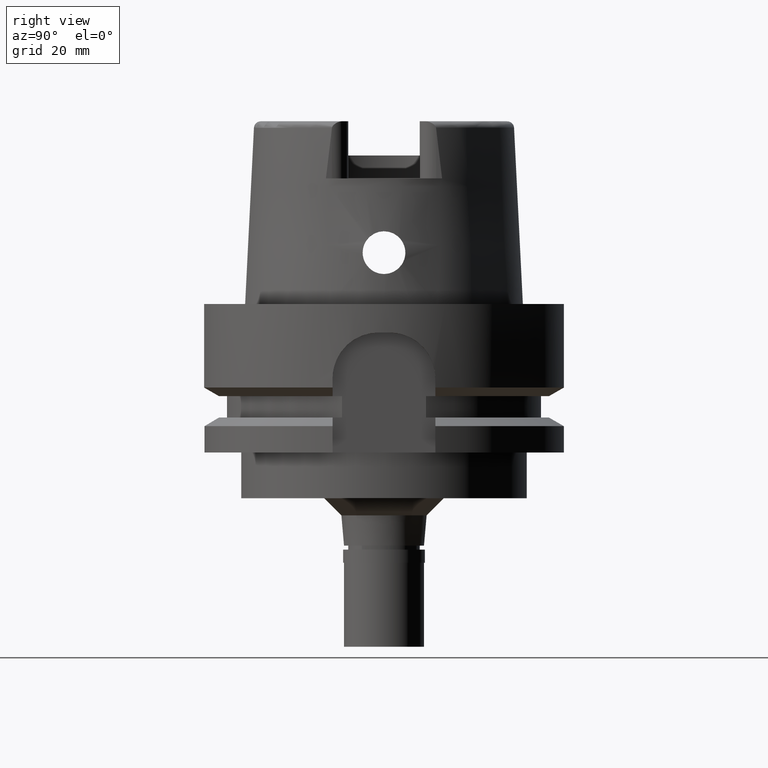
[diagram: clean part render]
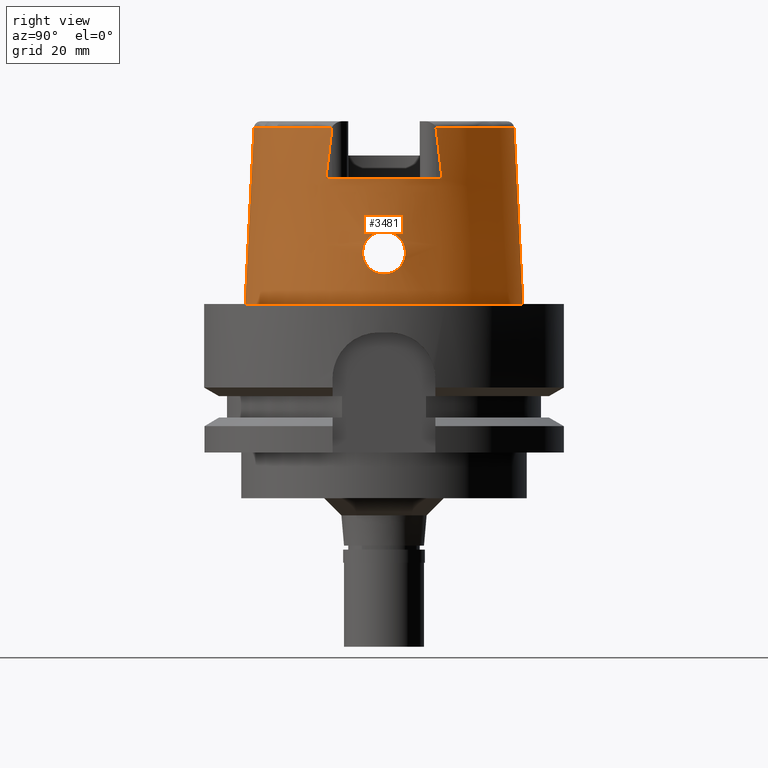
[diagram: same view with one face highlighted and labeled with its STEP entity id]
A machine part, right view. The second image highlights one B-rep face of the part: STEP entity #3481.
In plain terms, the highlighted conical surface has half-angle 2.862 deg.
Its self-contained STEP definition (entity closure, byte-faithful):
#40 = VERTEX_POINT ( 'NONE', #4683 ) ;
#41 = CARTESIAN_POINT ( 'NONE',  ( 23.78175132846823914, 3.040401347568880919, 6.801582225868161302 ) ) ;
#67 = B_SPLINE_CURVE_WITH_KNOTS ( 'NONE', 3,
 ( #2157, #3630, #156, #2278 ),
 .UNSPECIFIED., .F., .F.,
 ( 4, 4 ),
 ( 0.0000000000000000000, 1.000000000000000000 ),
 .UNSPECIFIED. ) ;
#70 = CARTESIAN_POINT ( 'NONE',  ( 23.61633271377072418, 2.102810472376998252, 12.10494810356430051 ) ) ;
#77 = VERTEX_POINT ( 'NONE', #1215 ) ;
#88 = DIRECTION ( 'NONE',  ( 0.0000000000000000000, -1.000000000000000000, 0.0000000000000000000 ) ) ;
#99 = CARTESIAN_POINT ( 'NONE',  ( 23.53874016442280848, 3.510003953213797434, 10.32063792399709179 ) ) ;
#103 = B_SPLINE_CURVE_WITH_KNOTS ( 'NONE', 3,
 ( #3001, #5528, #4782, #5560 ),
 .UNSPECIFIED., .F., .F.,
 ( 4, 4 ),
 ( 0.0000000000000000000, 1.000000000000000000 ),
 .UNSPECIFIED. ) ;
#156 = CARTESIAN_POINT ( 'NONE',  ( 20.87003658568521303, 9.826152025516758926, 24.98976325587998559 ) ) ;
#157 = CARTESIAN_POINT ( 'NONE',  ( 23.59773028090864599, 2.428583472433156309, 11.85885227866345559 ) ) ;
#182 = CARTESIAN_POINT ( 'NONE',  ( 23.58158771566241185, 2.687730117972046084, 11.61509995228751357 ) ) ;
#242 = CARTESIAN_POINT ( 'NONE',  ( 24.05252611746999847, 0.0000000000000000000, 5.250000000000000000 ) ) ;
#276 = CARTESIAN_POINT ( 'NONE',  ( 23.54852338332094419, -3.719125840167400998, 9.495011636946518507 ) ) ;
#282 = VERTEX_POINT ( 'NONE', #2015 ) ;
#304 = CARTESIAN_POINT ( 'NONE',  ( 23.58524642002331717, -2.629640737548156082, 11.67352294156376757 ) ) ;
#329 = CARTESIAN_POINT ( 'NONE',  ( 23.56476892455144423, -3.749315999014164014, 9.077538715473972175 ) ) ;
#357 = CARTESIAN_POINT ( 'NONE',  ( 23.53832783373017179, -3.629665269298419705, 9.973364864414399733 ) ) ;
#380 = CARTESIAN_POINT ( 'NONE',  ( 23.57503122516796878, 3.748151717364314184, 8.878875692657532070 ) ) ;
#394 = FACE_BOUND ( 'NONE', #845, .T. ) ;
#410 = VERTEX_POINT ( 'NONE', #2192 ) ;
#429 = DIRECTION ( 'NONE',  ( 0.0000000000000000000, 0.0000000000000000000, -1.000000000000000000 ) ) ;
#438 = EDGE_CURVE ( 'NONE', #2729, #883, #1678, .T. ) ;
#441 = CARTESIAN_POINT ( 'NONE',  ( 23.60572500966333465, 3.705339770202188188, 8.409968637820432136 ) ) ;
#471 = CARTESIAN_POINT ( 'NONE',  ( 23.86659780227140715, 2.550597457755695796, 6.250593775489374337 ) ) ;
#500 = CARTESIAN_POINT ( 'NONE',  ( 23.88426325309495724, 2.431694780307430914, 6.144418795178635762 ) ) ;
#514 = DIRECTION ( 'NONE',  ( 0.8989877876694422065, 0.4379736951247206744, 0.0000000000000000000 ) ) ;
#528 = CARTESIAN_POINT ( 'NONE',  ( 23.59421890636515684, 2.486440722002359660, 11.80783194272109604 ) ) ;
#557 = CARTESIAN_POINT ( 'NONE',  ( 23.63714615336548519, 1.693011088761851912, 12.34665004504048191 ) ) ;
#586 = CARTESIAN_POINT ( 'NONE',  ( 23.58227090643429946, 2.676734843505083727, 11.62633317984736792 ) ) ;
#613 = CARTESIAN_POINT ( 'NONE',  ( 23.53928433548756871, 3.481472322604213243, 10.39352498609589581 ) ) ;
#642 = CARTESIAN_POINT ( 'NONE',  ( 0.0000000000000000000, -22.77198729362000051, 30.85992712280000205 ) ) ;
#679 = CARTESIAN_POINT ( 'NONE',  ( 23.66780760899145974, -0.8223720014593964844, 12.66076403900963676 ) ) ;
#693 = DIRECTION ( 'NONE',  ( 0.0000000000000000000, 0.04993926899645239476, -0.9987522562738468945 ) ) ;
#700 = CARTESIAN_POINT ( 'NONE',  ( 23.88082832855004156, -2.470919224106545187, 6.164737522422374383 ) ) ;
#729 = CARTESIAN_POINT ( 'NONE',  ( 23.67991192422259417, -3.482340561903835230, 7.608644037382456204 ) ) ;
#758 = CARTESIAN_POINT ( 'NONE',  ( 23.62237292858697657, -3.666059678643482034, 8.201681757089462010 ) ) ;
#786 = CARTESIAN_POINT ( 'NONE',  ( 23.62026051316296460, -2.030549904126078609, 12.15276426525859321 ) ) ;
#809 = CARTESIAN_POINT ( 'NONE',  ( 23.85303263752144076, 2.636982854691085620, 6.333751799710867658 ) ) ;
#818 = CARTESIAN_POINT ( 'NONE',  ( 23.83490260009373429, -2.746045549770852467, 6.445907389255000730 ) ) ;
#822 = CARTESIAN_POINT ( 'NONE',  ( 20.87001804948999961, 10.16747560217999968, 22.00000000000000000 ) ) ;
#837 = CARTESIAN_POINT ( 'NONE',  ( 24.04786276609883089, 0.4702559605006317311, 5.271689797807800559 ) ) ;
#845 = EDGE_LOOP ( 'NONE', ( #4997, #3963 ) ) ;
#849 = CARTESIAN_POINT ( 'NONE',  ( 23.99197454833411314, -1.476600165136261689, 5.552903435421944423 ) ) ;
#852 = CARTESIAN_POINT ( 'NONE',  ( 0.0000000000000000000, 0.0000000000000000000, 22.00000000000000000 ) ) ;
#867 = CARTESIAN_POINT ( 'NONE',  ( 24.02804352277134115, 0.9471982458651515557, 5.369479588032893602 ) ) ;
#882 = ORIENTED_EDGE ( 'NONE', *, *, #5435, .T. ) ;
#883 = VERTEX_POINT ( 'NONE', #2231 ) ;
#894 = CARTESIAN_POINT ( 'NONE',  ( 23.68956134499084598, 3.446463436338484509, 7.521653867366995705 ) ) ;
#917 = CARTESIAN_POINT ( 'NONE',  ( 0.0000000000000000000, 22.77198729362000051, 30.85992712280000205 ) ) ;
#921 = CARTESIAN_POINT ( 'NONE',  ( 23.69921183777837470, 3.409003112130033930, 7.437251651747172509 ) ) ;
#922 = EDGE_CURVE ( 'NONE', #2151, #5183, #5006, .T. ) ;
#953 = CARTESIAN_POINT ( 'NONE',  ( 23.58276173471698201, 2.668839924659129892, 11.63434901346158235 ) ) ;
#963 = CARTESIAN_POINT ( 'NONE',  ( 23.99452769338240543, -1.445404441270893070, 5.539746871685131246 ) ) ;
#983 = CARTESIAN_POINT ( 'NONE',  ( 23.57540849015997964, 2.787627112264345453, 11.50855292692984477 ) ) ;
#988 = CARTESIAN_POINT ( 'NONE',  ( 20.86974110883999955, -9.111383540957000093, 30.85992743463999943 ) ) ;
#990 = ORIENTED_EDGE ( 'NONE', *, *, #3860, .F. ) ;
#1049 = CARTESIAN_POINT ( 'NONE',  ( 20.86979783654000187, 9.115619586083999693, 30.82499216673999953 ) ) ;
#1054 = CARTESIAN_POINT ( 'NONE',  ( 23.65635747766437547, -1.218286187249554287, 12.54762414683257177 ) ) ;
#1063 = CARTESIAN_POINT ( 'NONE',  ( 23.64769405135490743, 1.449339005240404266, 12.45861034579853310 ) ) ;
#1078 = CARTESIAN_POINT ( 'NONE',  ( 23.63247029362456431, -1.791702481718279172, 12.29485945215729892 ) ) ;
#1132 = CARTESIAN_POINT ( 'NONE',  ( 23.59785502180036687, -2.426131365507777637, 11.86009647381863630 ) ) ;
#1155 = CARTESIAN_POINT ( 'NONE',  ( 23.55031245380985183, -3.207614455033734213, 10.94643551251066249 ) ) ;
#1179 = CARTESIAN_POINT ( 'NONE',  ( 23.58664861062657891, -2.607679552133112200, 11.69494762120295483 ) ) ;
#1197 = CARTESIAN_POINT ( 'NONE',  ( 20.87000000000000099, -10.16755860605000095, 22.00000000000000000 ) ) ;
#1200 = VECTOR ( 'NONE', #693, 1000.000000000000000 ) ;
#1207 = CARTESIAN_POINT ( 'NONE',  ( 23.75806500102145336, -3.153757887678177774, 6.971111506823818971 ) ) ;
#1215 = CARTESIAN_POINT ( 'NONE',  ( 20.86974092012000170, 9.111384045666000020, 30.85992712280000205 ) ) ;
#1218 = CARTESIAN_POINT ( 'NONE',  ( 20.86999179061000120, -9.150018439614999721, 30.54599490405999873 ) ) ;
#1233 = CARTESIAN_POINT ( 'NONE',  ( 0.0000000000000000000, 24.31503482328999866, 1.136868377215999875E-13 ) ) ;
#1240 = CARTESIAN_POINT ( 'NONE',  ( 23.59389309863061612, -3.732121127925897675, 8.560688921325207090 ) ) ;
#1244 = B_SPLINE_CURVE_WITH_KNOTS ( 'NONE', 3,
 ( #2183, #4361, #837, #3090, #867, #4329, #5097, #2152, #2579, #3931, #3874, #4278, #1289, #1756, #5589, #1697, #1725, #500, #4664, #471, #3455, #1319, #5161, #809, #3034, #4727, #2606, #41, #1785, #1260, #3425, #3847, #921, #2663, #894, #4246, #3060, #441, #5130, #3486, #3516, #380, #2121, #2634, #5216, #1343, #4874, #1870, #3987, #2362, #99, #1842, #613, #3230, #2308, #4476, #4448, #4815, #4390, #4066, #2248, #983, #1409, #5362, #182, #586, #3148, #953, #1925, #2337, #1463, #4500, #2281, #528, #157, #4902, #3957, #3660, #4847, #3579, #1494, #4039, #70, #2695, #2723, #4418, #557, #3176, #2777, #1895, #4929, #5279, #3203, #1063, #1376, #1816, #4014 ),
 .UNSPECIFIED., .F., .F.,
 ( 4, 2, 2, 1, 1, 1, 2, 2, 2, 2, 2, 1, 1, 2, 2, 2, 2, 2, 1, 2, 2, 2, 2, 1, 2, 2, 2, 2, 1, 1, 1, 2, 2, 2, 2, 2, 1, 1, 1, 1, 1, 2, 3, 2, 2, 2, 1, 1, 1, 2, 2, 2, 2, 1, 1, 2, 2, 4 ),
 ( 0.0000000000000000000, 0.05000000000000023176, 0.07500000000000037192, 0.08750000000000041078, 0.09375000000000037470, 0.09687500000000032196, 0.09843750000000030254, 0.1000000000000002692, 0.1500000000000007438, 0.1750000000000010436, 0.1875000000000011380, 0.1937500000000011990, 0.1968750000000012434, 0.1984375000000012657, 0.2000000000000012879, 0.2250000000000008660, 0.2500000000000004441, 0.2750000000000000222, 0.2874999999999998668, 0.2937499999999999556, 0.2999999999999999889, 0.3500000000000003664, 0.3750000000000004441, 0.3875000000000004552, 0.3937500000000004330, 0.4000000000000004108, 0.4500000000000010103, 0.4750000000000014766, 0.4875000000000017097, 0.4937500000000020206, 0.4968750000000022315, 0.4984375000000023093, 0.5000000000000024425, 0.5500000000000059286, 0.5750000000000076161, 0.5875000000000084599, 0.5937500000000087708, 0.5968750000000090372, 0.5984375000000090594, 0.5992187500000091260, 0.5996093750000091038, 0.5998046875000090372, 0.6000000000000088596, 0.6500000000000091260, 0.6750000000000090372, 0.6875000000000087708, 0.6937500000000086375, 0.6968750000000085709, 0.6984375000000085931, 0.6992187500000086597, 0.7000000000000087264, 0.7500000000000083267, 0.7750000000000080158, 0.7875000000000078604, 0.7937500000000079492, 0.7968750000000078826, 0.8000000000000078160, 1.000000000000000000 ),
 .UNSPECIFIED. ) ;
#1260 = CARTESIAN_POINT ( 'NONE',  ( 23.73957566127458207, 3.239031984252265239, 7.106216088363848549 ) ) ;
#1272 = VERTEX_POINT ( 'NONE', #988 ) ;
#1289 = CARTESIAN_POINT ( 'NONE',  ( 23.98201876791376819, 1.602891513023056991, 5.604094483864233034 ) ) ;
#1319 = CARTESIAN_POINT ( 'NONE',  ( 23.85633896822139022, 2.616231228210793791, 6.313381679110545264 ) ) ;
#1321 = DIRECTION ( 'NONE',  ( 0.0000000000000000000, 0.0000000000000000000, -1.000000000000000000 ) ) ;
#1329 = CARTESIAN_POINT ( 'NONE',  ( 23.98499599403306348, -1.558384498214595570, 5.589029141878475215 ) ) ;
#1343 = CARTESIAN_POINT ( 'NONE',  ( 23.54833908987302848, 3.728251525243487574, 9.471593589715368466 ) ) ;
#1350 = B_SPLINE_CURVE_WITH_KNOTS ( 'NONE', 3,
 ( #4075, #5319, #3718, #4023, #1049, #4937 ),
 .UNSPECIFIED., .F., .F.,
 ( 4, 1, 1, 4 ),
 ( 0.0000000000000000000, 0.3333333333333000081, 0.6666666666667000474, 1.000000000000000000 ),
 .UNSPECIFIED. ) ;
#1376 = CARTESIAN_POINT ( 'NONE',  ( 23.66767627712430055, 0.9506280583159310016, 12.66629817543720371 ) ) ;
#1387 = CARTESIAN_POINT ( 'NONE',  ( 23.97337437116829406, -1.685790957987722827, 5.649776382120072604 ) ) ;
#1409 = CARTESIAN_POINT ( 'NONE',  ( 23.57758520326406781, 2.752305983986346849, 11.54745109431336303 ) ) ;
#1463 = CARTESIAN_POINT ( 'NONE',  ( 23.58295869874110195, 2.665672761220113873, 11.63755355018417248 ) ) ;
#1471 = CIRCLE ( 'NONE', #2307, 24.31503482328999866 ) ;
#1477 = AXIS2_PLACEMENT_3D ( 'NONE', #2135, #2101, #1709 ) ;
#1483 = CARTESIAN_POINT ( 'NONE',  ( 23.65931479635149515, -1.126698186177226502, 12.57730244619203397 ) ) ;
#1494 = CARTESIAN_POINT ( 'NONE',  ( 23.61546435722083714, 2.118575673650722191, 12.09422655871236429 ) ) ;
#1510 = CARTESIAN_POINT ( 'NONE',  ( 23.64862872162303375, -1.426004372831708222, 12.46829233165416007 ) ) ;
#1543 = VERTEX_POINT ( 'NONE', #242 ) ;
#1561 = CARTESIAN_POINT ( 'NONE',  ( 23.84117621405655285, -2.708989482677999217, 6.406876445474955162 ) ) ;
#1571 = AXIS2_PLACEMENT_3D ( 'NONE', #5307, #4700, #3429 ) ;
#1585 = EDGE_CURVE ( 'NONE', #5183, #410, #103, .T. ) ;
#1592 = CARTESIAN_POINT ( 'NONE',  ( 23.61823593919756803, -2.068014775624210877, 12.12824160596372103 ) ) ;
#1605 = EDGE_CURVE ( 'NONE', #1543, #282, #1244, .T. ) ;
#1620 = CARTESIAN_POINT ( 'NONE',  ( 23.55811628865553686, -3.744004506649548869, 9.226162198913492318 ) ) ;
#1649 = CARTESIAN_POINT ( 'NONE',  ( 23.84566199935953534, -2.682231268355529608, 6.379275952255752280 ) ) ;
#1678 = LINE ( 'NONE', #3376, #4723 ) ;
#1679 = CARTESIAN_POINT ( 'NONE',  ( 23.72430760928130056, -3.306441535424940792, 7.229768863565770864 ) ) ;
#1697 = CARTESIAN_POINT ( 'NONE',  ( 23.91338769550614174, 2.219650561495310370, 5.974457596401416382 ) ) ;
#1709 = DIRECTION ( 'NONE',  ( 0.0000000000000000000, -1.000000000000000000, 0.0000000000000000000 ) ) ;
#1725 = CARTESIAN_POINT ( 'NONE',  ( 23.89176748577902742, 2.378637682957415400, 6.100147135457582692 ) ) ;
#1747 = EDGE_CURVE ( 'NONE', #883, #3982, #1471, .T. ) ;
#1756 = CARTESIAN_POINT ( 'NONE',  ( 23.96271169707807758, 1.802515924701289185, 5.702438036442995184 ) ) ;
#1757 = CIRCLE ( 'NONE', #1571, 22.77198729362000407 ) ;
#1785 = CARTESIAN_POINT ( 'NONE',  ( 23.75344286717637488, 3.175536731722464090, 7.001738873570608312 ) ) ;
#1803 = DIRECTION ( 'NONE',  ( 0.0000000000000000000, 0.0000000000000000000, 1.000000000000000000 ) ) ;
#1816 = CARTESIAN_POINT ( 'NONE',  ( 23.67751368058000239, 0.4545974525356113460, 12.75000000000000000 ) ) ;
#1818 = CARTESIAN_POINT ( 'NONE',  ( 0.0000000000000000000, 0.0000000000000000000, 30.85992712280000205 ) ) ;
#1842 = CARTESIAN_POINT ( 'NONE',  ( 23.53909887482617336, 3.490182900127539067, 10.37169700387419269 ) ) ;
#1870 = CARTESIAN_POINT ( 'NONE',  ( 23.53943531740785389, 3.629445566621416042, 9.951297409318815568 ) ) ;
#1895 = CARTESIAN_POINT ( 'NONE',  ( 23.64455407538746812, 1.525623038896747774, 12.42581693082939509 ) ) ;
#1925 = CARTESIAN_POINT ( 'NONE',  ( 23.58286015510134348, 2.667257239042260419, 11.63595145800472430 ) ) ;
#1941 = CARTESIAN_POINT ( 'NONE',  ( 23.64959687653105291, -1.401384926647733620, 12.47831682091138461 ) ) ;
#1968 = CARTESIAN_POINT ( 'NONE',  ( 23.62530018640858387, -1.934676601165066678, 12.21257702611511853 ) ) ;
#1983 = CIRCLE ( 'NONE', #3254, 22.77198729362000051 ) ;
#1992 = CARTESIAN_POINT ( 'NONE',  ( 23.59365577767345457, -2.495853402124764475, 11.79996547664831930 ) ) ;
#2015 = CARTESIAN_POINT ( 'NONE',  ( 23.67751368057999883, 0.0000000000000000000, 12.75000000000000000 ) ) ;
#2016 = CARTESIAN_POINT ( 'NONE',  ( 23.54729037068262443, -3.267218662952441122, 10.84414696347211127 ) ) ;
#2043 = CARTESIAN_POINT ( 'NONE',  ( 23.67825119003239109, -3.488390474102441630, 7.623882598037707403 ) ) ;
#2068 = CARTESIAN_POINT ( 'NONE',  ( 23.58462875590494434, -2.639263196156206082, 11.66403538265344331 ) ) ;
#2071 = FACE_OUTER_BOUND ( 'NONE', #5121, .T. ) ;
#2097 = CARTESIAN_POINT ( 'NONE',  ( 23.56204077612891012, -3.747616764544975609, 9.136935382434192121 ) ) ;
#2101 = DIRECTION ( 'NONE',  ( 0.0000000000000000000, 0.0000000000000000000, -1.000000000000000000 ) ) ;
#2121 = CARTESIAN_POINT ( 'NONE',  ( 23.57190892115533032, 3.749559825558626880, 8.935863358623878483 ) ) ;
#2135 = CARTESIAN_POINT ( 'NONE',  ( 0.0000000000000000000, 0.0000000000000000000, 15.42996356139999925 ) ) ;
#2151 = VERTEX_POINT ( 'NONE', #822 ) ;
#2152 = CARTESIAN_POINT ( 'NONE',  ( 24.00447173888733943, 1.317561592015332295, 5.488836994667611435 ) ) ;
#2157 = CARTESIAN_POINT ( 'NONE',  ( 20.87000233117000292, 9.149994763924999219, 30.54552228658999979 ) ) ;
#2165 = CARTESIAN_POINT ( 'NONE',  ( 24.03352778703436243, -0.9601987664580006188, 5.339092881519173162 ) ) ;
#2169 = ORIENTED_EDGE ( 'NONE', *, *, #4087, .T. ) ;
#2183 = CARTESIAN_POINT ( 'NONE',  ( 24.05252611746999847, 0.0000000000000000000, 5.250000000000000000 ) ) ;
#2192 = CARTESIAN_POINT ( 'NONE',  ( 20.86999179061000120, -9.150018439614999721, 30.54599490405999873 ) ) ;
#2193 = CARTESIAN_POINT ( 'NONE',  ( 23.98829913558101268, -1.520479225880578600, 5.571887046215281636 ) ) ;
#2231 = CARTESIAN_POINT ( 'NONE',  ( 0.0000000000000000000, -24.31503482328999866, 2.273736754432000254E-13 ) ) ;
#2248 = CARTESIAN_POINT ( 'NONE',  ( 23.57118127748060132, 2.856503326476074633, 11.43057597346579790 ) ) ;
#2278 = CARTESIAN_POINT ( 'NONE',  ( 20.87001804948999961, 10.16747560217999968, 22.00000000000000000 ) ) ;
#2281 = CARTESIAN_POINT ( 'NONE',  ( 23.58578784813157725, 2.622993009840450362, 11.68284147886422097 ) ) ;
#2307 = AXIS2_PLACEMENT_3D ( 'NONE', #3948, #1803, #88 ) ;
#2308 = CARTESIAN_POINT ( 'NONE',  ( 23.53949852392677045, 3.472064670169626943, 10.41679430362973058 ) ) ;
#2337 = CARTESIAN_POINT ( 'NONE',  ( 23.58295860084190565, 2.665674335273441109, 11.63755195934971276 ) ) ;
#2362 = CARTESIAN_POINT ( 'NONE',  ( 23.53831886817531327, 3.547631628423804084, 10.21803891225577132 ) ) ;
#2433 = CARTESIAN_POINT ( 'NONE',  ( 23.67508716268286406, -0.4615775841655903045, 12.72953111880807242 ) ) ;
#2455 = CARTESIAN_POINT ( 'NONE',  ( 23.61776308319599238, -2.076697195885325975, 12.12248099890330622 ) ) ;
#2477 = CARTESIAN_POINT ( 'NONE',  ( 23.82237826203163777, -2.818708940161366083, 6.525327879983091606 ) ) ;
#2501 = CARTESIAN_POINT ( 'NONE',  ( 23.65002105892134310, -3.585064259962863265, 7.898265220513971840 ) ) ;
#2525 = CARTESIAN_POINT ( 'NONE',  ( 23.53984024127714747, -3.458427139811528050, 10.44977345711724226 ) ) ;
#2555 = DIRECTION ( 'NONE',  ( 0.0000000000000000000, -0.04993926899645239476, -0.9987522562738468945 ) ) ;
#2556 = CARTESIAN_POINT ( 'NONE',  ( 23.56627022364739332, -3.749819064784073674, 9.046253456057115727 ) ) ;
#2579 = CARTESIAN_POINT ( 'NONE',  ( 24.00058257670866624, 1.368979421123285078, 5.508749375327552933 ) ) ;
#2590 = CARTESIAN_POINT ( 'NONE',  ( 23.97818599392440220, -1.634546605772878136, 5.624515568029413437 ) ) ;
#2606 = CARTESIAN_POINT ( 'NONE',  ( 23.79607679291888900, 2.966623870712224331, 6.702936346448305827 ) ) ;
#2634 = CARTESIAN_POINT ( 'NONE',  ( 23.57049040065786727, 3.749931775431565750, 8.962634345691485649 ) ) ;
#2663 = CARTESIAN_POINT ( 'NONE',  ( 23.69263701575767911, 3.434676951318998750, 7.494517067995383641 ) ) ;
#2695 = CARTESIAN_POINT ( 'NONE',  ( 23.61657851804160657, 2.098339093006926781, 12.10797012634515823 ) ) ;
#2723 = CARTESIAN_POINT ( 'NONE',  ( 23.62336540423823905, 1.974788512280071462, 12.19127511184987434 ) ) ;
#2729 = VERTEX_POINT ( 'NONE', #642 ) ;
#2742 = ORIENTED_EDGE ( 'NONE', *, *, #4168, .T. ) ;
#2777 = CARTESIAN_POINT ( 'NONE',  ( 23.64293949082416901, 1.563202950902908839, 12.40876702298192669 ) ) ;
#2794 = CARTESIAN_POINT ( 'NONE',  ( 23.65250917193688807, -1.325133791972263442, 12.50833164303175238 ) ) ;
#2822 = CARTESIAN_POINT ( 'NONE',  ( 23.62970960749717619, -1.848028346719580606, 12.26370801834264235 ) ) ;
#2870 = CARTESIAN_POINT ( 'NONE',  ( 23.54026472918480195, -3.443153962037501348, 10.48576845051130135 ) ) ;
#2897 = CARTESIAN_POINT ( 'NONE',  ( 23.57882148403047395, -3.751046385722719201, 8.794513590869003750 ) ) ;
#2924 = CARTESIAN_POINT ( 'NONE',  ( 23.56133293908658999, -3.007544359262454670, 11.25317192266471977 ) ) ;
#2954 = CARTESIAN_POINT ( 'NONE',  ( 23.61183491578443139, -2.185122568630440298, 12.05004923387576099 ) ) ;
#2979 = CARTESIAN_POINT ( 'NONE',  ( 23.76007395161125757, -3.144207656674631757, 6.956342606124096939 ) ) ;
#3001 = CARTESIAN_POINT ( 'NONE',  ( 20.87000000000000099, -10.16755860605000095, 22.00000000000000000 ) ) ;
#3034 = CARTESIAN_POINT ( 'NONE',  ( 23.83826324286213705, 2.728882147429380733, 6.425012457454232440 ) ) ;
#3060 = CARTESIAN_POINT ( 'NONE',  ( 23.63501025354409890, 3.635259667956567409, 8.047053815518291131 ) ) ;
#3062 = DIRECTION ( 'NONE',  ( 0.0000000000000000000, 1.000000000000000000, 0.0000000000000000000 ) ) ;
#3070 = CARTESIAN_POINT ( 'NONE',  ( 24.05252611746999847, 0.0000000000000000000, 5.250000000000000000 ) ) ;
#3090 = CARTESIAN_POINT ( 'NONE',  ( 24.03387271198529263, 0.8278507391503897583, 5.340505832532676855 ) ) ;
#3099 = CARTESIAN_POINT ( 'NONE',  ( 24.05252611746999847, -0.4686445279862651581, 5.249999999999997335 ) ) ;
#3148 = CARTESIAN_POINT ( 'NONE',  ( 23.58261422739584035, 2.671212161204851832, 11.63194499524720094 ) ) ;
#3176 = CARTESIAN_POINT ( 'NONE',  ( 23.63957319205945851, 1.639875648119251128, 12.37290560043236631 ) ) ;
#3203 = CARTESIAN_POINT ( 'NONE',  ( 23.64752898331006392, 1.453421930518288052, 12.45689255263946471 ) ) ;
#3230 = CARTESIAN_POINT ( 'NONE',  ( 23.53941502651322182, 3.475617309044750414, 10.40806453722876412 ) ) ;
#3245 = CARTESIAN_POINT ( 'NONE',  ( 23.64021556821168701, -1.627881386131457608, 12.38048643874659938 ) ) ;
#3254 = AXIS2_PLACEMENT_3D ( 'NONE', #1818, #1321, #3062 ) ;
#3298 = CARTESIAN_POINT ( 'NONE',  ( 23.84641461826839759, -2.677723714460312543, 6.374666602057253328 ) ) ;
#3326 = CARTESIAN_POINT ( 'NONE',  ( 23.75506815250831139, -3.167944772633513040, 6.993221634525973229 ) ) ;
#3349 = CARTESIAN_POINT ( 'NONE',  ( 23.76121905391228140, -3.138738774758279337, 6.947957599073930623 ) ) ;
#3376 = CARTESIAN_POINT ( 'NONE',  ( 0.0000000000000000000, -22.77198729362000051, 30.85992712280000205 ) ) ;
#3377 = CARTESIAN_POINT ( 'NONE',  ( 23.65897614392796200, -3.556148912913656090, 7.806849058763027038 ) ) ;
#3410 = CARTESIAN_POINT ( 'NONE',  ( 23.74819154757859252, -3.200089633991507476, 7.044496709009181679 ) ) ;
#3419 = ORIENTED_EDGE ( 'NONE', *, *, #1585, .T. ) ;
#3425 = CARTESIAN_POINT ( 'NONE',  ( 23.71920538953814628, 3.327201888525044726, 7.269093007195170486 ) ) ;
#3429 = DIRECTION ( 'NONE',  ( 0.9164655183265837390, -0.4001136759951928745, 0.0000000000000000000 ) ) ;
#3455 = CARTESIAN_POINT ( 'NONE',  ( 23.85944590320956848, 2.596578626750682517, 6.294291012687457609 ) ) ;
#3481 = ADVANCED_FACE ( 'NONE', ( #2071, #394 ), #3922, .T. ) ;
#3486 = CARTESIAN_POINT ( 'NONE',  ( 23.58534022825985588, 3.738894332300251921, 8.705640858018801609 ) ) ;
#3496 = CARTESIAN_POINT ( 'NONE',  ( 23.90985323618718894, -2.259804162580318021, 5.996912215512659294 ) ) ;
#3516 = CARTESIAN_POINT ( 'NONE',  ( 23.57990309939767926, 3.745052843841282453, 8.792925903687150324 ) ) ;
#3527 = B_SPLINE_CURVE_WITH_KNOTS ( 'NONE', 3,
 ( #3649, #4970, #2433, #679, #5351, #1483, #1054, #2794, #4862, #1941, #4544, #1510, #3698, #3245, #1078, #2822, #1968, #4568, #786, #4646, #1592, #2455, #2954, #4676, #1132, #1992, #4151, #1179, #304, #2068, #4227, #2924, #1155, #2016, #5077, #5020, #3748, #2870, #4257, #4618, #2525, #3827, #357, #4179, #276, #3723, #1620, #2097, #329, #2556, #2897, #1240, #758, #5539, #2501, #3377, #5000, #4589, #2043, #729, #5047, #5110, #5457, #1679, #4202, #3800, #3410, #3326, #1207, #2979, #3349, #5429, #3777, #5511, #2477, #818, #1561, #5481, #1649, #3298, #700, #3496, #4707, #5171, #1387, #2590, #1329, #2193, #849, #5260, #963, #3885, #2165, #3099, #3070 ),
 .UNSPECIFIED., .F., .F.,
 ( 4, 2, 2, 1, 1, 1, 2, 2, 2, 2, 1, 1, 2, 2, 2, 1, 1, 2, 2, 2, 2, 1, 1, 1, 2, 2, 2, 2, 1, 2, 2, 2, 2, 1, 1, 1, 2, 2, 2, 2, 1, 1, 2, 2, 2, 1, 1, 1, 2, 2, 2, 2, 2, 1, 1, 2, 2, 4 ),
 ( 0.0000000000000000000, 0.06249999999998853695, 0.09374999999998280542, 0.1093749999999798495, 0.1171874999999783507, 0.1210937499999776151, 0.1230468749999771988, 0.1249999999999767825, 0.1562499999999722444, 0.1718749999999698852, 0.1796874999999687195, 0.1835937499999681366, 0.1855468749999678868, 0.1874999999999676370, 0.2187499999999661382, 0.2343749999999654166, 0.2421874999999650557, 0.2460937499999648892, 0.2499999999999647504, 0.3124999999999596434, 0.3437499999999570899, 0.3593749999999558686, 0.3671874999999552580, 0.3710937499999549249, 0.3730468749999549805, 0.3749999999999550915, 0.4374999999999565903, 0.4687499999999573674, 0.4843749999999578115, 0.4921874999999579781, 0.4999999999999581446, 0.5624999999999604761, 0.5937499999999615863, 0.6093749999999621414, 0.6171874999999625855, 0.6210937499999629186, 0.6230468749999631406, 0.6249999999999632516, 0.6562499999999644729, 0.6718749999999651390, 0.6796874999999653610, 0.6835937499999655831, 0.6855468749999656941, 0.6874999999999659162, 0.7187499999999676925, 0.7343749999999684697, 0.7421874999999689138, 0.7460937499999691358, 0.7480468749999693578, 0.7499999999999695799, 0.8124999999999766853, 0.8437499999999802380, 0.8593749999999820144, 0.8671874999999830136, 0.8710937499999835687, 0.8730468749999839018, 0.8749999999999841238, 1.000000000000000000 ),
 .UNSPECIFIED. ) ;
#3579 = CARTESIAN_POINT ( 'NONE',  ( 23.61426495133109427, 2.140274190169417778, 12.07930480540420604 ) ) ;
#3630 = CARTESIAN_POINT ( 'NONE',  ( 20.87000693992522926, 9.487123607258801883, 27.83827043657305111 ) ) ;
#3649 = CARTESIAN_POINT ( 'NONE',  ( 23.67751368057999883, 0.0000000000000000000, 12.75000000000000000 ) ) ;
#3660 = CARTESIAN_POINT ( 'NONE',  ( 23.61001539264939098, 2.216246190864178622, 12.02514134982889438 ) ) ;
#3698 = CARTESIAN_POINT ( 'NONE',  ( 23.64466337287641196, -1.525585380022876025, 12.42715225073055230 ) ) ;
#3718 = CARTESIAN_POINT ( 'NONE',  ( 20.86997922676000172, 9.137000529112000891, 30.65041110685999826 ) ) ;
#3723 = CARTESIAN_POINT ( 'NONE',  ( 23.55469500666344018, -3.737169649239703517, 9.315707771095247836 ) ) ;
#3732 = ORIENTED_EDGE ( 'NONE', *, *, #4524, .F. ) ;
#3748 = CARTESIAN_POINT ( 'NONE',  ( 23.54083878462436275, -3.424237470272812001, 10.52917856603609970 ) ) ;
#3777 = CARTESIAN_POINT ( 'NONE',  ( 23.79034286028706902, -2.994403689200879182, 6.739208311974966392 ) ) ;
#3791 = LINE ( 'NONE', #5065, #1200 ) ;
#3800 = CARTESIAN_POINT ( 'NONE',  ( 23.74249624324040298, -3.226039407502671263, 7.087863765588626741 ) ) ;
#3827 = CARTESIAN_POINT ( 'NONE',  ( 23.53725570278500001, -3.557864201093609235, 10.21117020832554267 ) ) ;
#3847 = CARTESIAN_POINT ( 'NONE',  ( 23.70912788794896997, 3.369518583786832444, 7.352069607087595493 ) ) ;
#3860 = EDGE_CURVE ( 'NONE', #40, #77, #1350, .T. ) ;
#3874 = CARTESIAN_POINT ( 'NONE',  ( 23.99772718480462430, 1.405629973834303659, 5.523397242024151055 ) ) ;
#3882 = ORIENTED_EDGE ( 'NONE', *, *, #1747, .T. ) ;
#3885 = CARTESIAN_POINT ( 'NONE',  ( 23.99493742833699272, -1.440350225816720231, 5.537637349423204292 ) ) ;
#3922 = CONICAL_SURFACE ( 'NONE', #1477, 23.54351105844999736, 0.04996004983832824653 ) ;
#3931 = CARTESIAN_POINT ( 'NONE',  ( 23.99887480643112525, 1.390975342341758791, 5.517508082262939872 ) ) ;
#3948 = CARTESIAN_POINT ( 'NONE',  ( 0.0000000000000000000, 0.0000000000000000000, 1.136868377215999875E-13 ) ) ;
#3957 = CARTESIAN_POINT ( 'NONE',  ( 23.60633032904330975, 2.281168670055874426, 11.97685722845650957 ) ) ;
#3963 = ORIENTED_EDGE ( 'NONE', *, *, #4638, .F. ) ;
#3982 = VERTEX_POINT ( 'NONE', #1233 ) ;
#3987 = CARTESIAN_POINT ( 'NONE',  ( 23.53846539920766645, 3.576431960375727748, 10.12936703658029813 ) ) ;
#4014 = CARTESIAN_POINT ( 'NONE',  ( 23.67751368057999883, 0.0000000000000000000, 12.75000000000000000 ) ) ;
#4023 = CARTESIAN_POINT ( 'NONE',  ( 20.86989360828000173, 9.124124435460000626, 30.75511465507999986 ) ) ;
#4039 = CARTESIAN_POINT ( 'NONE',  ( 23.61598454964084581, 2.109135414143058718, 12.10065515873234254 ) ) ;
#4066 = CARTESIAN_POINT ( 'NONE',  ( 23.56853142039952331, 2.900065294515987713, 11.37835183116825100 ) ) ;
#4075 = CARTESIAN_POINT ( 'NONE',  ( 20.87000233117000292, 9.149994763924999219, 30.54552228658999979 ) ) ;
#4087 = EDGE_CURVE ( 'NONE', #40, #2151, #67, .T. ) ;
#4151 = CARTESIAN_POINT ( 'NONE',  ( 23.58875153014735560, -2.574540578562933391, 11.72688250739689764 ) ) ;
#4168 = EDGE_CURVE ( 'NONE', #1272, #2729, #1757, .T. ) ;
#4179 = CARTESIAN_POINT ( 'NONE',  ( 23.54530355528154217, -3.701260842522190231, 9.614833682566944262 ) ) ;
#4202 = CARTESIAN_POINT ( 'NONE',  ( 23.73137087250897537, -3.275906521358288082, 7.173714859569114921 ) ) ;
#4227 = CARTESIAN_POINT ( 'NONE',  ( 23.57128557713118866, -2.845655174354401851, 11.45768177636856500 ) ) ;
#4246 = CARTESIAN_POINT ( 'NONE',  ( 23.65855333796173809, 3.562596819280638094, 7.799198484282255706 ) ) ;
#4257 = CARTESIAN_POINT ( 'NONE',  ( 23.54004160662688250, -3.451058036496386539, 10.46722301801459842 ) ) ;
#4278 = CARTESIAN_POINT ( 'NONE',  ( 23.99702049892534816, 1.414563541545406755, 5.527026056841583213 ) ) ;
#4329 = CARTESIAN_POINT ( 'NONE',  ( 24.01755098218619366, 1.125448867964991884, 5.422332381248046396 ) ) ;
#4361 = CARTESIAN_POINT ( 'NONE',  ( 24.05252611747000202, 0.2325222855087641094, 5.249999999999998224 ) ) ;
#4369 = VERTEX_POINT ( 'NONE', #917 ) ;
#4390 = CARTESIAN_POINT ( 'NONE',  ( 23.56108670327181187, 3.024008584081216977, 11.22162478031573940 ) ) ;
#4418 = CARTESIAN_POINT ( 'NONE',  ( 23.62931651873110894, 1.857763885312065266, 12.25985055316810168 ) ) ;
#4448 = CARTESIAN_POINT ( 'NONE',  ( 23.54594609600943045, 3.294507561397227668, 10.80788211720098069 ) ) ;
#4476 = CARTESIAN_POINT ( 'NONE',  ( 23.54140491707132554, 3.393712255119655019, 10.60789611310026714 ) ) ;
#4500 = CARTESIAN_POINT ( 'NONE',  ( 23.58297122983839955, 2.665471282394191288, 11.63775717699515511 ) ) ;
#4524 = EDGE_CURVE ( 'NONE', #1272, #410, #5335, .T. ) ;
#4544 = CARTESIAN_POINT ( 'NONE',  ( 23.64899972564230524, -1.416626056428510250, 12.47213741599009396 ) ) ;
#4568 = CARTESIAN_POINT ( 'NONE',  ( 23.62302837788991638, -1.978539360973606609, 12.18591040127004810 ) ) ;
#4589 = CARTESIAN_POINT ( 'NONE',  ( 23.67577155829405200, -3.497379803127004916, 7.646743532715085223 ) ) ;
#4593 = ORIENTED_EDGE ( 'NONE', *, *, #922, .T. ) ;
#4618 = CARTESIAN_POINT ( 'NONE',  ( 23.53989794741090336, -3.456282676111368968, 10.45487285309424408 ) ) ;
#4629 = CARTESIAN_POINT ( 'NONE',  ( 20.86974110883999955, -9.111383540957000093, 30.85992743463999943 ) ) ;
#4638 = EDGE_CURVE ( 'NONE', #282, #1543, #3527, .T. ) ;
#4646 = CARTESIAN_POINT ( 'NONE',  ( 23.61904912368243359, -2.053007360312128604, 12.13811112549998406 ) ) ;
#4664 = CARTESIAN_POINT ( 'NONE',  ( 23.87256065990635534, 2.511008876083145935, 6.214577176673619086 ) ) ;
#4676 = CARTESIAN_POINT ( 'NONE',  ( 23.60624764790786045, -2.283820667611468291, 11.97686481506843492 ) ) ;
#4683 = CARTESIAN_POINT ( 'NONE',  ( 20.87000233117000292, 9.149994763924999219, 30.54552228658999979 ) ) ;
#4700 = DIRECTION ( 'NONE',  ( 0.0000000000000000000, 0.0000000000000000000, -1.000000000000000000 ) ) ;
#4707 = CARTESIAN_POINT ( 'NONE',  ( 23.94687165323449918, -1.945170843531458749, 5.791495961805061654 ) ) ;
#4723 = VECTOR ( 'NONE', #2555, 1000.000000000000000 ) ;
#4727 = CARTESIAN_POINT ( 'NONE',  ( 23.82426571017821715, 2.811184180408548006, 6.515125330611509114 ) ) ;
#4782 = CARTESIAN_POINT ( 'NONE',  ( 20.86997558656052476, -9.487356811412270829, 27.83696496950079791 ) ) ;
#4815 = CARTESIAN_POINT ( 'NONE',  ( 23.55679669734069748, 3.097639369393999420, 11.11708757320758778 ) ) ;
#4847 = CARTESIAN_POINT ( 'NONE',  ( 23.61192364524606901, 2.182366747995819534, 12.04979493676545488 ) ) ;
#4862 = CARTESIAN_POINT ( 'NONE',  ( 23.65048549392504285, -1.378518358114895648, 12.48750034574243273 ) ) ;
#4874 = CARTESIAN_POINT ( 'NONE',  ( 23.54098440438865225, 3.658667860165543129, 9.831618588252419855 ) ) ;
#4902 = CARTESIAN_POINT ( 'NONE',  ( 23.60404887542233965, 2.320669367698079633, 11.94603669262222212 ) ) ;
#4929 = CARTESIAN_POINT ( 'NONE',  ( 23.64631776894464110, 1.483169999658039195, 12.44427112268108360 ) ) ;
#4937 = CARTESIAN_POINT ( 'NONE',  ( 20.86974092012000170, 9.111384045666000020, 30.85992712280000205 ) ) ;
#4970 = CARTESIAN_POINT ( 'NONE',  ( 23.67751368057999883, -0.2259905783878069230, 12.75000000000000000 ) ) ;
#4997 = ORIENTED_EDGE ( 'NONE', *, *, #1605, .F. ) ;
#5000 = CARTESIAN_POINT ( 'NONE',  ( 23.67006603773350903, -3.517758450994041386, 7.700102491643668223 ) ) ;
#5006 = CIRCLE ( 'NONE', #5287, 23.21499834174999322 ) ;
#5020 = CARTESIAN_POINT ( 'NONE',  ( 23.54220064005456337, -3.384479284957645273, 10.61651698178714476 ) ) ;
#5027 = CARTESIAN_POINT ( 'NONE',  ( 20.86991377786657154, -9.124261068632673499, 30.75528325778000038 ) ) ;
#5047 = CARTESIAN_POINT ( 'NONE',  ( 23.68092225167713138, -3.478639285498318134, 7.599424818311300456 ) ) ;
#5065 = CARTESIAN_POINT ( 'NONE',  ( 0.0000000000000000000, 22.77198729362000051, 30.85992712280000205 ) ) ;
#5077 = CARTESIAN_POINT ( 'NONE',  ( 23.54373436393932906, -3.346995852958016826, 10.69215623211596089 ) ) ;
#5097 = CARTESIAN_POINT ( 'NONE',  ( 24.01186752270257685, 1.214380098732456670, 5.451105293408597952 ) ) ;
#5110 = CARTESIAN_POINT ( 'NONE',  ( 23.69217414848240821, -3.437256442938802170, 7.497152569896526231 ) ) ;
#5118 = CARTESIAN_POINT ( 'NONE',  ( 20.87000008239884252, -9.137139754423197147, 30.65063908092000133 ) ) ;
#5121 = EDGE_LOOP ( 'NONE', ( #3419, #3732, #2742, #5304, #3882, #5583, #882, #990, #2169, #4593 ) ) ;
#5130 = CARTESIAN_POINT ( 'NONE',  ( 23.59696815882737653, 3.722236158863591271, 8.529499725879100325 ) ) ;
#5161 = CARTESIAN_POINT ( 'NONE',  ( 23.85425838147588706, 2.629319973647080921, 6.326189924885322391 ) ) ;
#5171 = CARTESIAN_POINT ( 'NONE',  ( 23.95812463484886123, -1.840571835566281234, 5.730695319574101276 ) ) ;
#5183 = VERTEX_POINT ( 'NONE', #1197 ) ;
#5205 = EDGE_CURVE ( 'NONE', #4369, #3982, #3791, .T. ) ;
#5216 = CARTESIAN_POINT ( 'NONE',  ( 23.55685211291860170, 3.750476028444545751, 9.230300588167166254 ) ) ;
#5260 = CARTESIAN_POINT ( 'NONE',  ( 23.99351152828840483, -1.457872179606816809, 5.544981270848603927 ) ) ;
#5279 = CARTESIAN_POINT ( 'NONE',  ( 23.64704792580485559, 1.465280163195988639, 12.45188288792509113 ) ) ;
#5287 = AXIS2_PLACEMENT_3D ( 'NONE', #852, #429, #514 ) ;
#5304 = ORIENTED_EDGE ( 'NONE', *, *, #438, .T. ) ;
#5307 = CARTESIAN_POINT ( 'NONE',  ( 0.0000000000000000000, 0.0000000000000000000, 30.85992712280000205 ) ) ;
#5319 = CARTESIAN_POINT ( 'NONE',  ( 20.87000233117000292, 9.145647684069000860, 30.58043093308000238 ) ) ;
#5335 = B_SPLINE_CURVE_WITH_KNOTS ( 'NONE', 3,
 ( #4629, #5027, #5118, #1218 ),
 .UNSPECIFIED., .F., .F.,
 ( 4, 4 ),
 ( 0.0000000000000000000, 1.000000000000000000 ),
 .UNSPECIFIED. ) ;
#5351 = CARTESIAN_POINT ( 'NONE',  ( 23.66477446162005194, -0.9438418847964250569, 12.63150504248173256 ) ) ;
#5362 = CARTESIAN_POINT ( 'NONE',  ( 23.58023513872334931, 2.709520751428138308, 11.59259639688368182 ) ) ;
#5429 = CARTESIAN_POINT ( 'NONE',  ( 23.77618629013772988, -3.066992810599403096, 6.838706958709596329 ) ) ;
#5435 = EDGE_CURVE ( 'NONE', #4369, #77, #1983, .T. ) ;
#5457 = CARTESIAN_POINT ( 'NONE',  ( 23.70417877137809626, -3.390756114745005156, 7.393647428284435108 ) ) ;
#5481 = CARTESIAN_POINT ( 'NONE',  ( 23.84386735824028491, -2.692954889033743804, 6.390296362228391480 ) ) ;
#5511 = CARTESIAN_POINT ( 'NONE',  ( 23.81168235488739171, -2.878451238902500986, 6.595670240400375306 ) ) ;
#5528 = CARTESIAN_POINT ( 'NONE',  ( 20.86999201472913512, -9.826413489730867923, 24.98830091298254530 ) ) ;
#5539 = CARTESIAN_POINT ( 'NONE',  ( 23.63284493991509905, -3.637766548425652502, 8.080665659988653715 ) ) ;
#5560 = CARTESIAN_POINT ( 'NONE',  ( 20.86999179061000120, -9.150018439614999721, 30.54599490405999873 ) ) ;
#5583 = ORIENTED_EDGE ( 'NONE', *, *, #5205, .F. ) ;
#5589 = CARTESIAN_POINT ( 'NONE',  ( 23.92661118422416422, 2.113928233454859473, 5.900173058963234851 ) ) ;